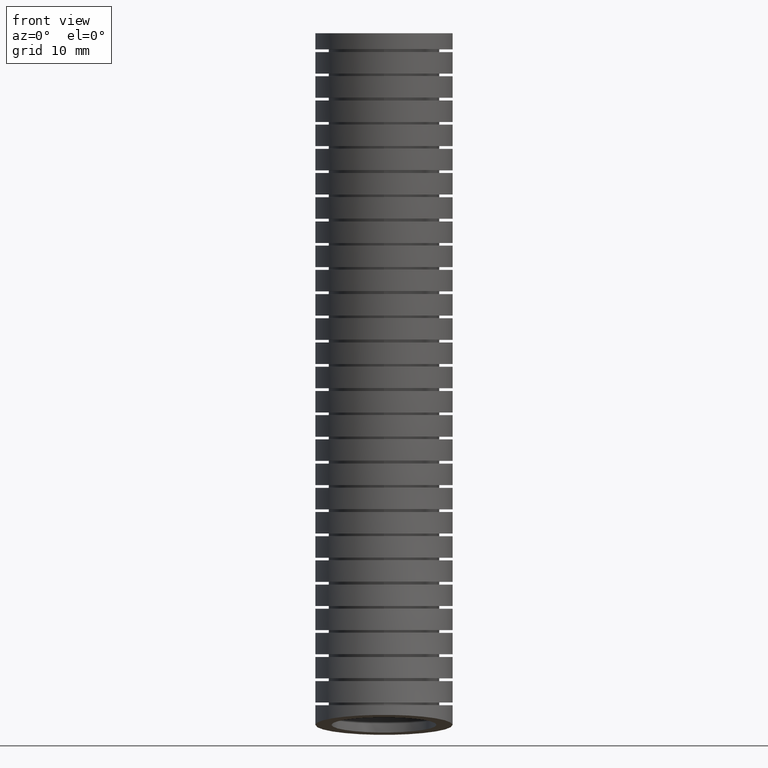
[diagram: clean part render]
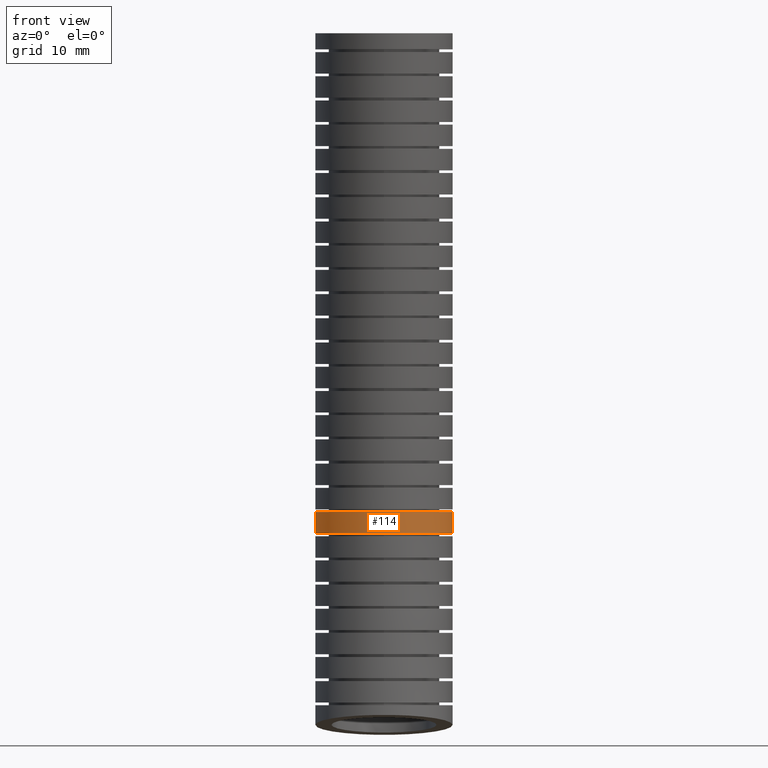
[diagram: same view with one face highlighted and labeled with its STEP entity id]
A machine part, front view. The second image highlights one B-rep face of the part: STEP entity #114.
In plain terms, the highlighted face is a freeform B-spline surface patch.
Its self-contained STEP definition (entity closure, byte-faithful):
#89 = ORIENTED_EDGE ( 'NONE', *, *, #90, .T. ) ;
#90 = EDGE_CURVE ( 'NONE', #349, #350, #2673, .T. ) ;
#110 = ORIENTED_EDGE ( 'NONE', *, *, #111, .F. ) ;
#111 = EDGE_CURVE ( 'NONE', #349, #192, #2867, .T. ) ;
#114 = ADVANCED_FACE ( 'NONE', ( #2865 ), #3147, .T. ) ;
#115 = EDGE_LOOP ( 'NONE', ( #89, #351, #116, #110 ) ) ;
#116 = ORIENTED_EDGE ( 'NONE', *, *, #117, .T. ) ;
#117 = EDGE_CURVE ( 'NONE', #276, #192, #3216, .T. ) ;
#192 = VERTEX_POINT ( 'NONE', #8530 ) ;
#275 = EDGE_CURVE ( 'NONE', #350, #276, #9957, .T. ) ;
#276 = VERTEX_POINT ( 'NONE', #9956 ) ;
#349 = VERTEX_POINT ( 'NONE', #10896 ) ;
#350 = VERTEX_POINT ( 'NONE', #10895 ) ;
#351 = ORIENTED_EDGE ( 'NONE', *, *, #275, .T. ) ;
#2272 = CARTESIAN_POINT ( 'NONE',  ( -0.2550000000000000000, 0.03186986169528214400, -1.779156064945825800 ) ) ;
#2273 = CARTESIAN_POINT ( 'NONE',  ( -0.2550000000000000600, 0.01523011861289397800, -1.779156064945826500 ) ) ;
#2656 = CARTESIAN_POINT ( 'NONE',  ( 0.1127766857220460400, -0.1969031747573165600, -1.779156064945826000 ) ) ;
#2657 = CARTESIAN_POINT ( 'NONE',  ( 0.1274995623466540500, -0.1890422693923385600, -1.779156064945825800 ) ) ;
#2658 = CARTESIAN_POINT ( 'NONE',  ( 0.1347432892632348900, -0.1847048582278114600, -1.779156064945824500 ) ) ;
#2659 = CARTESIAN_POINT ( 'NONE',  ( 0.1556543047965634500, -0.1707315753628290700, -1.779156064945823800 ) ) ;
#2660 = CARTESIAN_POINT ( 'NONE',  ( 0.1684954494607353600, -0.1601811359569258500, -1.779156064945825300 ) ) ;
#2661 = CARTESIAN_POINT ( 'NONE',  ( 0.1920300731284990700, -0.1366681499613560100, -1.779156064945825300 ) ) ;
#2662 = CARTESIAN_POINT ( 'NONE',  ( 0.2028047212577170400, -0.1235490892596492900, -1.779156064945824900 ) ) ;
#2663 = CARTESIAN_POINT ( 'NONE',  ( 0.2213179187029482300, -0.09583694928499482400, -1.779156064945824900 ) ) ;
#2664 = CARTESIAN_POINT ( 'NONE',  ( 0.2291540688929453200, -0.08119368877600878500, -1.779156064945825600 ) ) ;
#2665 = CARTESIAN_POINT ( 'NONE',  ( 0.2387583266587373900, -0.05803731939565074500, -1.779156064945824700 ) ) ;
#2666 = CARTESIAN_POINT ( 'NONE',  ( 0.2416089437201166800, -0.05007643949748133400, -1.779156064945823100 ) ) ;
#2667 = CARTESIAN_POINT ( 'NONE',  ( 0.2464656851080225000, -0.03405821783182647100, -1.779156064945823300 ) ) ;
#2668 = CARTESIAN_POINT ( 'NONE',  ( 0.2484854040751721400, -0.02597950706494521800, -1.779156064945825600 ) ) ;
#2669 = CARTESIAN_POINT ( 'NONE',  ( 0.2533459601988444800, -0.001539233855017414600, -1.779156064945825300 ) ) ;
#2670 = CARTESIAN_POINT ( 'NONE',  ( 0.2550000000000000000, 0.01502445918543282600, -1.779156064947103700 ) ) ;
#2671 = CARTESIAN_POINT ( 'NONE',  ( 0.2550000000000000000, 0.03186986169517457000, -1.779156064947103700 ) ) ;
#2673 = B_SPLINE_CURVE_WITH_KNOTS ( 'NONE', 3,
 ( #2671, #2670, #2669, #2668, #2667, #2666, #2665, #2664, #2663, #2662, #2661, #2660, #2659, #2658, #2657, #2656, #2856, #2855, #2854, #2853, #2852, #2851, #2850, #2849, #2848, #2847, #2846, #2845, #2844, #2843, #2842, #2841, #2840, #2839, #2838, #2837, #2836, #2835, #2834, #2833, #2832, #2273, #2272 ),
 .UNSPECIFIED., .F., .F.,
 ( 4, 2, 2, 2, 2, 2, 2, 2, 1, 2, 2, 2, 2, 2, 2, 2, 2, 2, 2, 2, 2, 4 ),
 ( 0.0000000000000000000, 0.001265397826948774600, 0.001898096740423162200, 0.002530795653897549600, 0.003796193480846324800, 0.005061591307795100900, 0.006326989134743874800, 0.006959688048218263000, 0.007592386961692652200, 0.008225085875167041300, 0.008857784788641428700, 0.01012318261559020900, 0.01138858044253898700, 0.01265397826948776500, 0.01328667718296215600, 0.01391937609643654500, 0.01518477392338532200, 0.01645017175033410000, 0.01708287066380849100, 0.01771556957728287800, 0.01898096740423166000, 0.02024636523118043800 ),
 .UNSPECIFIED. ) ;
#2832 = CARTESIAN_POINT ( 'NONE',  ( -0.2533316864358451900, -0.001668496337788622600, -1.779156064945824700 ) ) ;
#2833 = CARTESIAN_POINT ( 'NONE',  ( -0.2468121009542972300, -0.03433526782973649000, -1.779156064945825300 ) ) ;
#2834 = CARTESIAN_POINT ( 'NONE',  ( -0.2419906960466742500, -0.05022974533733683800, -1.779156064945825300 ) ) ;
#2835 = CARTESIAN_POINT ( 'NONE',  ( -0.2323873901653369400, -0.07340501023053075400, -1.779156064945825800 ) ) ;
#2836 = CARTESIAN_POINT ( 'NONE',  ( -0.2287680492639060900, -0.08104889756869133900, -1.779156064945824200 ) ) ;
#2837 = CARTESIAN_POINT ( 'NONE',  ( -0.2208726052811087500, -0.09579420623905760000, -1.779156064945824500 ) ) ;
#2838 = CARTESIAN_POINT ( 'NONE',  ( -0.2165862491180306500, -0.1029294364526894400, -1.779156064945825800 ) ) ;
#2839 = CARTESIAN_POINT ( 'NONE',  ( -0.2027323762529099100, -0.1236376471142691500, -1.779156064945825800 ) ) ;
#2840 = CARTESIAN_POINT ( 'NONE',  ( -0.1921576869503607600, -0.1365421509942020800, -1.779156064945825300 ) ) ;
#2841 = CARTESIAN_POINT ( 'NONE',  ( -0.1683451165399299800, -0.1603298317056550400, -1.779156064945824900 ) ) ;
#2842 = CARTESIAN_POINT ( 'NONE',  ( -0.1554647349230724200, -0.1708644990979133200, -1.779156064945824900 ) ) ;
#2843 = CARTESIAN_POINT ( 'NONE',  ( -0.1347383817365623300, -0.1847049908527449700, -1.779156064945824900 ) ) ;
#2844 = CARTESIAN_POINT ( 'NONE',  ( -0.1275935710651548400, -0.1889891567065156200, -1.779156064945824500 ) ) ;
#2845 = CARTESIAN_POINT ( 'NONE',  ( -0.1128203705840258400, -0.1968827423800520200, -1.779156064945824700 ) ) ;
#2846 = CARTESIAN_POINT ( 'NONE',  ( -0.1051779137232610600, -0.2004922765768013500, -1.779156064945826000 ) ) ;
#2847 = CARTESIAN_POINT ( 'NONE',  ( -0.08202460084615331700, -0.2100648636970528500, -1.779156064945825800 ) ) ;
#2848 = CARTESIAN_POINT ( 'NONE',  ( -0.06613043106234078900, -0.2148777269922960100, -1.779156064945826000 ) ) ;
#2849 = CARTESIAN_POINT ( 'NONE',  ( -0.03343023120211188700, -0.2213841872469141700, -1.779156064945826700 ) ) ;
#2850 = CARTESIAN_POINT ( 'NONE',  ( -0.01654019587526410500, -0.2230411122609967900, -1.779156064945825300 ) ) ;
#2851 = CARTESIAN_POINT ( 'NONE',  ( 0.01671820886378981900, -0.2230295078641746900, -1.779156064945825300 ) ) ;
#2852 = CARTESIAN_POINT ( 'NONE',  ( 0.03326207743038306400, -0.2214133956628672500, -1.779156064945825300 ) ) ;
#2853 = CARTESIAN_POINT ( 'NONE',  ( 0.05794640742668458900, -0.2165082404135835700, -1.779156064945824900 ) ) ;
#2854 = CARTESIAN_POINT ( 'NONE',  ( 0.06612794952567814500, -0.2144561753301935400, -1.779156064945825300 ) ) ;
#2855 = CARTESIAN_POINT ( 'NONE',  ( 0.08209063905685612400, -0.2096095436111616300, -1.779156064945825800 ) ) ;
#2856 = CARTESIAN_POINT ( 'NONE',  ( 0.09774138583161508200, -0.2040045064708448900, -1.779156064945823600 ) ) ;
#2860 = CARTESIAN_POINT ( 'NONE',  ( 0.2550000000000000000, 0.02818028950570638400, -1.859059992210060800 ) ) ;
#2861 = CARTESIAN_POINT ( 'NONE',  ( 0.2550000000000000000, 0.02952134537512119500, -1.832429660647002100 ) ) ;
#2862 = CARTESIAN_POINT ( 'NONE',  ( 0.2550000000000000000, 0.03074958258292321400, -1.805794955415787900 ) ) ;
#2863 = CARTESIAN_POINT ( 'NONE',  ( 0.2550000000000000000, 0.03186986169517457000, -1.779156064947103700 ) ) ;
#2865 = FACE_OUTER_BOUND ( 'NONE', #115, .T. ) ;
#2867 = B_SPLINE_CURVE_WITH_KNOTS ( 'NONE', 3,
 ( #2863, #2862, #2861, #2860 ),
 .UNSPECIFIED., .F., .F.,
 ( 4, 4 ),
 ( 0.6914849608688716800, 0.7226175499967386600 ),
 .UNSPECIFIED. ) ;
#3098 = CARTESIAN_POINT ( 'NONE',  ( 0.2550000000000000000, 0.02818028950570638400, -1.859059992210060800 ) ) ;
#3099 = CARTESIAN_POINT ( 'NONE',  ( 0.2550000000000000600, 0.01133407340002201900, -1.859059992210061000 ) ) ;
#3100 = CARTESIAN_POINT ( 'NONE',  ( 0.2533255813513897700, -0.005391063750830752400, -1.859059992401734600 ) ) ;
#3101 = CARTESIAN_POINT ( 'NONE',  ( 0.2550000000000000000, -0.03000000000000002700, -2.569999999999999800 ) ) ;
#3102 = CARTESIAN_POINT ( 'NONE',  ( 0.2550000000000000000, -0.01126751581493337800, -2.380080086044865000 ) ) ;
#3103 = CARTESIAN_POINT ( 'NONE',  ( 0.2550000000000000000, 0.02578591590436005500, -2.004412636156899000 ) ) ;
#3104 = CARTESIAN_POINT ( 'NONE',  ( 0.2550000000000001700, 0.05488873695197821200, -1.148486533150796300 ) ) ;
#3105 = CARTESIAN_POINT ( 'NONE',  ( 0.2550000000000000000, 0.02298048079048191000, -0.4808413197099051800 ) ) ;
#3106 = CARTESIAN_POINT ( 'NONE',  ( 0.2550000000000000000, 0.0000000000000000000, 0.0000000000000000000 ) ) ;
#3111 = CARTESIAN_POINT ( 'NONE',  ( 0.2549999999999999500, 0.4745687628602173200, -2.644231822998695900 ) ) ;
#3112 = CARTESIAN_POINT ( 'NONE',  ( 0.2549999999999998900, 0.4942108475508936700, -2.446087519929936800 ) ) ;
#3113 = CARTESIAN_POINT ( 'NONE',  ( 0.2550000000000000000, 0.5330634971365140200, -2.054151974607116000 ) ) ;
#3114 = CARTESIAN_POINT ( 'NONE',  ( 0.2550000000000000000, 0.5652806686658973200, -1.166484199753219600 ) ) ;
#3115 = CARTESIAN_POINT ( 'NONE',  ( 0.2550000000000000000, 0.5331445723641462500, -0.4883764727230331400 ) ) ;
#3116 = CARTESIAN_POINT ( 'NONE',  ( 0.2550000000000000000, 0.5100000000000000100, 0.0000000000000000000 ) ) ;
#3117 = CARTESIAN_POINT ( 'NONE',  ( -0.2549999999999998900, 0.4745687628602173200, -2.644231822998695900 ) ) ;
#3118 = CARTESIAN_POINT ( 'NONE',  ( -0.2549999999999998400, 0.4942108475508936700, -2.446087519929936800 ) ) ;
#3119 = CARTESIAN_POINT ( 'NONE',  ( -0.2550000000000000000, 0.5330634971365140200, -2.054151974607116000 ) ) ;
#3147 =( BOUNDED_SURFACE ( )  B_SPLINE_SURFACE ( 3, 3, ( 
 ( #3194, #3193, #3192, #3191, #3190, #3189 ),
 ( #3206, #3205, #3204, #3203, #3202, #3201 ),
 ( #3200, #3199, #3198, #3197, #3196, #3195 ),
 ( #3179, #3178, #3177, #3176, #3175, #3174 ),
 ( #3173, #3172, #3171, #3119, #3118, #3117 ),
 ( #3116, #3115, #3114, #3113, #3112, #3111 ),
 ( #3106, #3105, #3104, #3103, #3102, #3101 ) ),
 .UNSPECIFIED., .F., .F., .F. ) 
 B_SPLINE_SURFACE_WITH_KNOTS ( ( 4, 3, 4 ),
 ( 4, 1, 1, 4 ),
 ( 0.0000000000000000000, 0.5000000000000000000, 1.000000000000000000 ),
 ( 0.0000000000000000000, 0.5599999999999998300, 0.7775565539011162200, 1.000000000000000000 ),
 .UNSPECIFIED. ) 
 GEOMETRIC_REPRESENTATION_ITEM ( )  RATIONAL_B_SPLINE_SURFACE ( (
 ( 1.000000000000000000, 1.000000000000000000, 0.9999999999999998900, 1.000000000000000000, 1.000000000000000000, 1.000000000000000000),
 ( 0.3333333333333333100, 0.3333333333333333100, 0.3333333333333332600, 0.3333333333333332600, 0.3333333333333333700, 0.3333333333333333100),
 ( 0.3333333333333333100, 0.3333333333333333100, 0.3333333333333332600, 0.3333333333333332600, 0.3333333333333333700, 0.3333333333333333100),
 ( 1.000000000000000000, 1.000000000000000000, 0.9999999999999998900, 1.000000000000000000, 1.000000000000000000, 1.000000000000000000),
 ( 0.3333333333333333100, 0.3333333333333333100, 0.3333333333333332600, 0.3333333333333332600, 0.3333333333333333700, 0.3333333333333333100),
 ( 0.3333333333333333100, 0.3333333333333333100, 0.3333333333333332600, 0.3333333333333332600, 0.3333333333333333700, 0.3333333333333333100),
 ( 1.000000000000000000, 1.000000000000000000, 0.9999999999999998900, 1.000000000000000000, 1.000000000000000000, 1.000000000000000000) ) ) 
 REPRESENTATION_ITEM ( '' )  SURFACE ( )  );
#3171 = CARTESIAN_POINT ( 'NONE',  ( -0.2550000000000000000, 0.5652806686658973200, -1.166484199753219600 ) ) ;
#3172 = CARTESIAN_POINT ( 'NONE',  ( -0.2549999999999999500, 0.5331445723641462500, -0.4883764727230331400 ) ) ;
#3173 = CARTESIAN_POINT ( 'NONE',  ( -0.2549999999999999500, 0.5100000000000000100, 0.0000000000000000000 ) ) ;
#3174 = CARTESIAN_POINT ( 'NONE',  ( -0.2550000000000000000, -0.02999999999999999500, -2.569999999999999800 ) ) ;
#3175 = CARTESIAN_POINT ( 'NONE',  ( -0.2550000000000000000, -0.01126751581493334900, -2.380080086044865000 ) ) ;
#3176 = CARTESIAN_POINT ( 'NONE',  ( -0.2550000000000000000, 0.02578591590436009300, -2.004412636156899000 ) ) ;
#3177 = CARTESIAN_POINT ( 'NONE',  ( -0.2550000000000001700, 0.05488873695197826800, -1.148486533150796300 ) ) ;
#3178 = CARTESIAN_POINT ( 'NONE',  ( -0.2550000000000000000, 0.02298048079048194800, -0.4808413197099051800 ) ) ;
#3179 = CARTESIAN_POINT ( 'NONE',  ( -0.2550000000000000000, 3.122849337825751200E-017, 0.0000000000000000000 ) ) ;
#3189 = CARTESIAN_POINT ( 'NONE',  ( 0.2550000000000000000, -0.03000000000000002700, -2.569999999999999800 ) ) ;
#3190 = CARTESIAN_POINT ( 'NONE',  ( 0.2550000000000000000, -0.01126751581493337800, -2.380080086044865000 ) ) ;
#3191 = CARTESIAN_POINT ( 'NONE',  ( 0.2550000000000000000, 0.02578591590436005500, -2.004412636156899000 ) ) ;
#3192 = CARTESIAN_POINT ( 'NONE',  ( 0.2550000000000001700, 0.05488873695197821200, -1.148486533150796300 ) ) ;
#3193 = CARTESIAN_POINT ( 'NONE',  ( 0.2550000000000000000, 0.02298048079048191000, -0.4808413197099051800 ) ) ;
#3194 = CARTESIAN_POINT ( 'NONE',  ( 0.2550000000000000000, 0.0000000000000000000, 0.0000000000000000000 ) ) ;
#3195 = CARTESIAN_POINT ( 'NONE',  ( -0.2550000000000000000, -0.5345687628602172600, -2.495768177001302000 ) ) ;
#3196 = CARTESIAN_POINT ( 'NONE',  ( -0.2549999999999999500, -0.5167458791807605400, -2.314072652159792300 ) ) ;
#3197 = CARTESIAN_POINT ( 'NONE',  ( -0.2550000000000001200, -0.4814916653277938100, -1.954673297706683400 ) ) ;
#3198 = CARTESIAN_POINT ( 'NONE',  ( -0.2550000000000001200, -0.4555031947619409000, -1.130488866548372800 ) ) ;
#3199 = CARTESIAN_POINT ( 'NONE',  ( -0.2550000000000000600, -0.4871836107831824000, -0.4733061666967772200 ) ) ;
#3200 = CARTESIAN_POINT ( 'NONE',  ( -0.2550000000000000600, -0.5100000000000000100, 0.0000000000000000000 ) ) ;
#3201 = CARTESIAN_POINT ( 'NONE',  ( 0.2549999999999999500, -0.5345687628602172600, -2.495768177001302000 ) ) ;
#3202 = CARTESIAN_POINT ( 'NONE',  ( 0.2549999999999998900, -0.5167458791807605400, -2.314072652159792300 ) ) ;
#3203 = CARTESIAN_POINT ( 'NONE',  ( 0.2550000000000000000, -0.4814916653277938100, -1.954673297706683400 ) ) ;
#3204 = CARTESIAN_POINT ( 'NONE',  ( 0.2550000000000000000, -0.4555031947619409000, -1.130488866548372800 ) ) ;
#3205 = CARTESIAN_POINT ( 'NONE',  ( 0.2550000000000000000, -0.4871836107831824000, -0.4733061666967772200 ) ) ;
#3206 = CARTESIAN_POINT ( 'NONE',  ( 0.2550000000000000000, -0.5100000000000000100, 0.0000000000000000000 ) ) ;
#3207 = CARTESIAN_POINT ( 'NONE',  ( -0.2212451574002238000, -0.09969522080214930600, -1.859059992401734400 ) ) ;
#3208 = CARTESIAN_POINT ( 'NONE',  ( -0.2291301364698120900, -0.08499266599568711100, -1.859059992401734400 ) ) ;
#3209 = CARTESIAN_POINT ( 'NONE',  ( -0.2420166028916652900, -0.05389554095969995000, -1.859059992401734600 ) ) ;
#3210 = CARTESIAN_POINT ( 'NONE',  ( -0.2468316091883070700, -0.03796630905258847200, -1.859059992401735700 ) ) ;
#3211 = CARTESIAN_POINT ( 'NONE',  ( -0.2517039959401294900, -0.01352301703146598800, -1.859059992401735000 ) ) ;
#3212 = CARTESIAN_POINT ( 'NONE',  ( -0.2529335477309633300, -0.005283003330992639200, -1.859059992401732400 ) ) ;
#3213 = CARTESIAN_POINT ( 'NONE',  ( -0.2545841765681959900, 0.01138604046833348300, -1.859059992401732600 ) ) ;
#3214 = CARTESIAN_POINT ( 'NONE',  ( -0.2550000000000000000, 0.01982834653723501700, -1.859059992401733900 ) ) ;
#3215 = CARTESIAN_POINT ( 'NONE',  ( -0.2550000000000000600, 0.02818028948640179800, -1.859059992401733900 ) ) ;
#3216 = B_SPLINE_CURVE_WITH_KNOTS ( 'NONE', 3,
 ( #3215, #3214, #3213, #3212, #3211, #3210, #3209, #3208, #3207, #3336, #3335, #3334, #3333, #3332, #3331, #3330, #3329, #3328, #3327, #3326, #3325, #3324, #3323, #3322, #3321, #3320, #3319, #3318, #3317, #3316, #3315, #3314, #3313, #3312, #3311, #3310, #3309, #3308, #3307, #3100, #3099, #3098 ),
 .UNSPECIFIED., .F., .F.,
 ( 4, 2, 2, 2, 2, 2, 2, 2, 2, 2, 2, 2, 2, 2, 2, 2, 2, 2, 2, 2, 4 ),
 ( 0.02046648619566132600, 0.02110611042639312000, 0.02174573465712491300, 0.02302498311858849900, 0.02430423158005208500, 0.02494385581078387500, 0.02558348004151566800, 0.02686272850297925800, 0.02814197696444284400, 0.02942122542590643000, 0.03006084965663822400, 0.03070047388737001700, 0.03197972234883361000, 0.03325897081029719600, 0.03453821927176078200, 0.03581746773322436200, 0.03645709196395615500, 0.03709671619468794800, 0.03837596465615153400, 0.03965521311761512100, 0.04093446157907870700 ),
 .UNSPECIFIED. ) ;
#3307 = CARTESIAN_POINT ( 'NONE',  ( 0.2468305713925923700, -0.03796846295201197800, -1.859059992401734800 ) ) ;
#3308 = CARTESIAN_POINT ( 'NONE',  ( 0.2419892463970398900, -0.05397285295842905300, -1.859059992401733500 ) ) ;
#3309 = CARTESIAN_POINT ( 'NONE',  ( 0.2291071621999295500, -0.08503676602624382600, -1.859059992401733900 ) ) ;
#3310 = CARTESIAN_POINT ( 'NONE',  ( 0.2212449324528241400, -0.09969671028470762600, -1.859059992401735000 ) ) ;
#3311 = CARTESIAN_POINT ( 'NONE',  ( 0.2073930911302051500, -0.1204235743267821800, -1.859059992401734600 ) ) ;
#3312 = CARTESIAN_POINT ( 'NONE',  ( 0.2024302165928478800, -0.1271204793919566700, -1.859059992401733500 ) ) ;
#3313 = CARTESIAN_POINT ( 'NONE',  ( 0.1917951102293737300, -0.1400790420980057000, -1.859059992401734600 ) ) ;
#3314 = CARTESIAN_POINT ( 'NONE',  ( 0.1861203409974884800, -0.1463342599314151600, -1.859059992401733900 ) ) ;
#3315 = CARTESIAN_POINT ( 'NONE',  ( 0.1684050089687547100, -0.1640312405818614400, -1.859059992401734600 ) ) ;
#3316 = CARTESIAN_POINT ( 'NONE',  ( 0.1555646716655780200, -0.1745634123816064400, -1.859059992401735500 ) ) ;
#3317 = CARTESIAN_POINT ( 'NONE',  ( 0.1278284843526531800, -0.1931019243669768200, -1.859059992401735700 ) ) ;
#3318 = CARTESIAN_POINT ( 'NONE',  ( 0.1128646223529898600, -0.2010923589739529400, -1.859059992401733000 ) ) ;
#3319 = CARTESIAN_POINT ( 'NONE',  ( 0.08214108913302345400, -0.2138066524093428000, -1.859059992401733500 ) ) ;
#3320 = CARTESIAN_POINT ( 'NONE',  ( 0.06623306417505305000, -0.2186472948820203400, -1.859059992401733700 ) ) ;
#3321 = CARTESIAN_POINT ( 'NONE',  ( 0.03329084873631819200, -0.2252021565842312300, -1.859059992401733900 ) ) ;
#3322 = CARTESIAN_POINT ( 'NONE',  ( 0.01660366136989505400, -0.2268277690891172300, -1.859059992401734600 ) ) ;
#3323 = CARTESIAN_POINT ( 'NONE',  ( -0.008307874154191229000, -0.2268273754680121300, -1.859059992401734600 ) ) ;
#3324 = CARTESIAN_POINT ( 'NONE',  ( -0.01661510652198504300, -0.2264225988253152600, -1.859059992401733700 ) ) ;
#3325 = CARTESIAN_POINT ( 'NONE',  ( -0.03323646088234551200, -0.2247899878824322400, -1.859059992401734400 ) ) ;
#3326 = CARTESIAN_POINT ( 'NONE',  ( -0.04159635505994621600, -0.2235512198117510500, -1.859059992401734400 ) ) ;
#3327 = CARTESIAN_POINT ( 'NONE',  ( -0.06624274999746719600, -0.2186419564148273900, -1.859059992401733700 ) ) ;
#3328 = CARTESIAN_POINT ( 'NONE',  ( -0.08214063484257125300, -0.2138078612118033100, -1.859059992401733700 ) ) ;
#3329 = CARTESIAN_POINT ( 'NONE',  ( -0.1128917985980367600, -0.2010800909604851800, -1.859059992401733900 ) ) ;
#3330 = CARTESIAN_POINT ( 'NONE',  ( -0.1278689561846445600, -0.1930767275009748500, -1.859059992401734400 ) ) ;
#3331 = CARTESIAN_POINT ( 'NONE',  ( -0.1555634641824177600, -0.1745623628299655700, -1.859059992401734400 ) ) ;
#3332 = CARTESIAN_POINT ( 'NONE',  ( -0.1684085635729364900, -0.1640308283748203300, -1.859059992401733900 ) ) ;
#3333 = CARTESIAN_POINT ( 'NONE',  ( -0.1861545281923897000, -0.1462985340184183600, -1.859059992401733900 ) ) ;
#3334 = CARTESIAN_POINT ( 'NONE',  ( -0.1918352364827614100, -0.1400323816741170500, -1.859059992401734600 ) ) ;
#3335 = CARTESIAN_POINT ( 'NONE',  ( -0.2024450115400096600, -0.1271002083727140200, -1.859059992401734400 ) ) ;
#3336 = CARTESIAN_POINT ( 'NONE',  ( -0.2074011725543167500, -0.1204120578178304700, -1.859059992401734800 ) ) ;
#8530 = CARTESIAN_POINT ( 'NONE',  ( 0.2550000000000000000, 0.02818028950570638400, -1.859059992210060800 ) ) ;
#9952 = CARTESIAN_POINT ( 'NONE',  ( -0.2550000000000000600, 0.02818028948640179800, -1.859059992401733900 ) ) ;
#9953 = CARTESIAN_POINT ( 'NONE',  ( -0.2550000000000000000, 0.02952134536923428300, -1.832429660774702400 ) ) ;
#9954 = CARTESIAN_POINT ( 'NONE',  ( -0.2550000000000000000, 0.03074958258026804600, -1.805794955479008300 ) ) ;
#9955 = CARTESIAN_POINT ( 'NONE',  ( -0.2550000000000000000, 0.03186986169528214400, -1.779156064945825800 ) ) ;
#9956 = CARTESIAN_POINT ( 'NONE',  ( -0.2550000000000000600, 0.02818028948640179800, -1.859059992401733900 ) ) ;
#9957 = B_SPLINE_CURVE_WITH_KNOTS ( 'NONE', 3,
 ( #9955, #9954, #9953, #9952 ),
 .UNSPECIFIED., .F., .F.,
 ( 4, 4 ),
 ( 0.6914849608683730800, 0.7226175500716203200 ),
 .UNSPECIFIED. ) ;
#10895 = CARTESIAN_POINT ( 'NONE',  ( -0.2550000000000000000, 0.03186986169528214400, -1.779156064945825800 ) ) ;
#10896 = CARTESIAN_POINT ( 'NONE',  ( 0.2550000000000000000, 0.03186986169517457000, -1.779156064947103700 ) ) ;